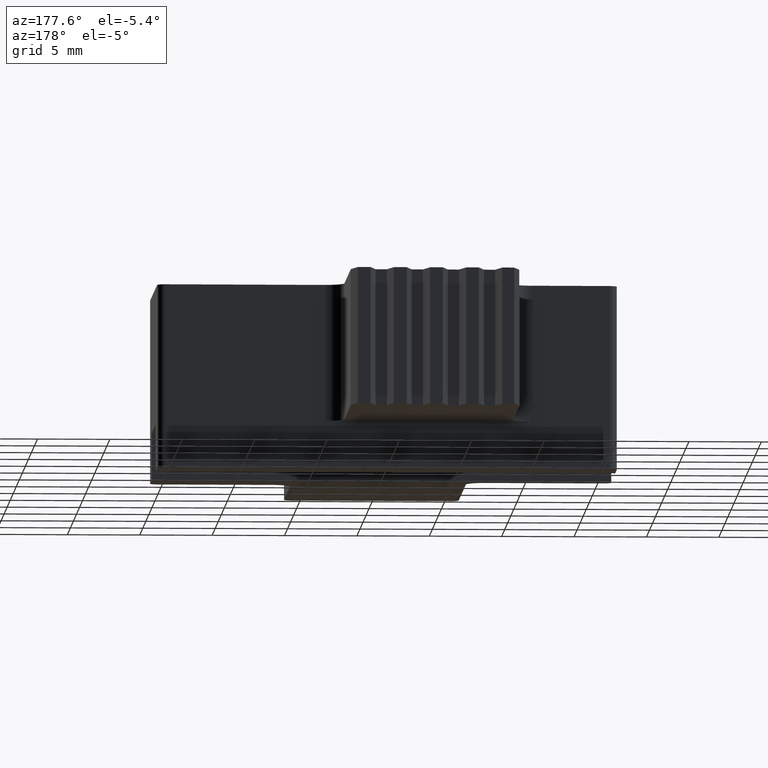
[diagram: clean part render]
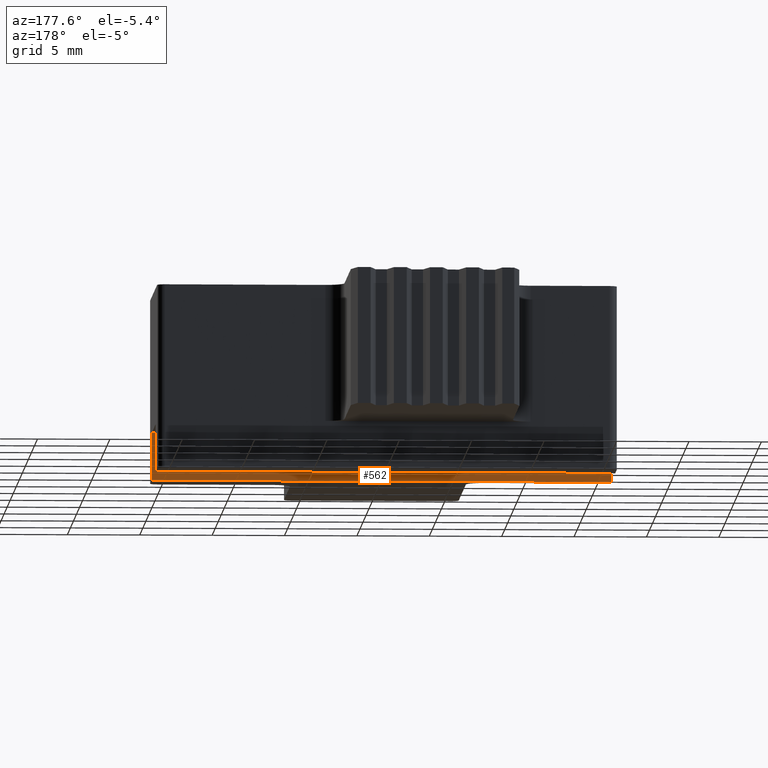
[diagram: same view with one face highlighted and labeled with its STEP entity id]
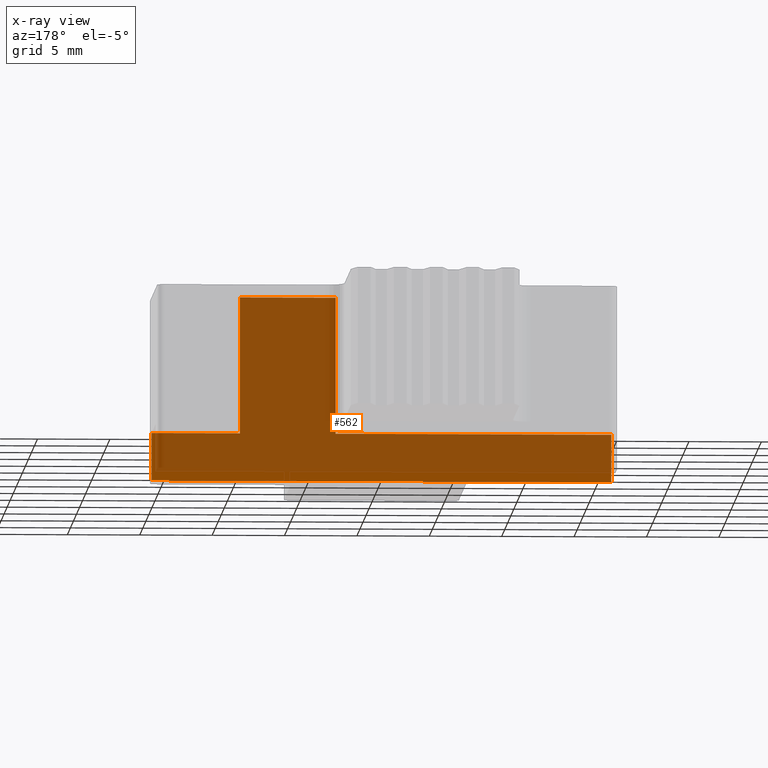
[diagram: x-ray of the same camera — body ghosted, the highlighted face saturated]
A machine part, auxiliary view. The second image highlights one B-rep face of the part: STEP entity #562.
The next image is the same camera in x-ray: the body ghosted, the highlighted face saturated — about 88% of this face is hidden behind the body in this view.
In plain terms, the highlighted planar face has unit normal (0, -1, 0).
Its self-contained STEP definition (entity closure, byte-faithful):
#9 = VERTEX_POINT ( 'NONE', #965 ) ;
#67 = CARTESIAN_POINT ( 'NONE',  ( 1.004736740000000017, -0.7069999999999999618, -0.05900000000000000383 ) ) ;
#86 = VECTOR ( 'NONE', #1045, 39.37007874015748143 ) ;
#107 = EDGE_CURVE ( 'NONE', #1450, #1535, #1674, .T. ) ;
#130 = VERTEX_POINT ( 'NONE', #996 ) ;
#172 = CARTESIAN_POINT ( 'NONE',  ( 0.5047367400000000170, -0.7069999999999998508, -0.1880000000000000282 ) ) ;
#209 = LINE ( 'NONE', #1331, #86 ) ;
#272 = CARTESIAN_POINT ( 'NONE',  ( 0.7647367400000000259, -0.7069999999999998508, -0.05900000000000000383 ) ) ;
#355 = DIRECTION ( 'NONE',  ( -0.000000000000000000, -0.000000000000000000, 1.000000000000000000 ) ) ;
#395 = ORIENTED_EDGE ( 'NONE', *, *, #1623, .F. ) ;
#429 = ORIENTED_EDGE ( 'NONE', *, *, #1020, .F. ) ;
#471 = DIRECTION ( 'NONE',  ( 1.000000000000000000, 0.000000000000000000, 0.000000000000000000 ) ) ;
#490 = LINE ( 'NONE', #1570, #494 ) ;
#494 = VECTOR ( 'NONE', #1436, 39.37007874015748143 ) ;
#552 = DIRECTION ( 'NONE',  ( 0.000000000000000000, -1.000000000000000000, 0.000000000000000000 ) ) ;
#562 = ADVANCED_FACE ( 'NONE', ( #699 ), #1022, .F. ) ;
#585 = VECTOR ( 'NONE', #471, 39.37007874015748143 ) ;
#635 = CARTESIAN_POINT ( 'NONE',  ( 0.7647367400000000259, -0.7069999999999998508, -0.1880000000000000282 ) ) ;
#677 = ORIENTED_EDGE ( 'NONE', *, *, #107, .F. ) ;
#699 = FACE_OUTER_BOUND ( 'NONE', #1559, .T. ) ;
#749 = LINE ( 'NONE', #172, #585 ) ;
#755 = ORIENTED_EDGE ( 'NONE', *, *, #787, .T. ) ;
#763 = DIRECTION ( 'NONE',  ( -0.000000000000000000, -0.000000000000000000, 1.000000000000000000 ) ) ;
#787 = EDGE_CURVE ( 'NONE', #1450, #130, #1769, .T. ) ;
#795 = VECTOR ( 'NONE', #1595, 39.37007874015748143 ) ;
#797 = DIRECTION ( 'NONE',  ( -0.000000000000000000, -0.000000000000000000, -1.000000000000000000 ) ) ;
#806 = VERTEX_POINT ( 'NONE', #272 ) ;
#810 = ORIENTED_EDGE ( 'NONE', *, *, #988, .F. ) ;
#882 = VERTEX_POINT ( 'NONE', #1153 ) ;
#961 = ORIENTED_EDGE ( 'NONE', *, *, #1636, .T. ) ;
#962 = EDGE_CURVE ( 'NONE', #1657, #1797, #749, .T. ) ;
#965 = CARTESIAN_POINT ( 'NONE',  ( 1.004736740000000017, -0.7069999999999999618, -0.05900000000000000383 ) ) ;
#988 = EDGE_CURVE ( 'NONE', #9, #806, #1721, .T. ) ;
#996 = CARTESIAN_POINT ( 'NONE',  ( 0.5047367400000000170, -0.7069999999999998508, 0.3119999999999999996 ) ) ;
#1020 = EDGE_CURVE ( 'NONE', #1535, #1657, #209, .T. ) ;
#1022 = PLANE ( 'NONE',  #1266 ) ;
#1045 = DIRECTION ( 'NONE',  ( -0.000000000000000000, -0.000000000000000000, -1.000000000000000000 ) ) ;
#1050 = EDGE_CURVE ( 'NONE', #130, #882, #490, .T. ) ;
#1057 = LINE ( 'NONE', #635, #1211 ) ;
#1076 = CARTESIAN_POINT ( 'NONE',  ( -0.2452632600000000940, -0.7069999999999999618, -0.1880000000000000282 ) ) ;
#1079 = CARTESIAN_POINT ( 'NONE',  ( 0.5047367400000000170, -0.7069999999999998508, -0.1880000000000000282 ) ) ;
#1096 = VECTOR ( 'NONE', #355, 39.37007874015748143 ) ;
#1103 = ORIENTED_EDGE ( 'NONE', *, *, #1050, .T. ) ;
#1153 = CARTESIAN_POINT ( 'NONE',  ( 0.7647367400000000259, -0.7069999999999998508, 0.3119999999999999996 ) ) ;
#1158 = CARTESIAN_POINT ( 'NONE',  ( -0.2452632600000000940, -0.7069999999999999618, -0.05900000000000000383 ) ) ;
#1189 = CARTESIAN_POINT ( 'NONE',  ( 1.004736740000000017, -0.7069999999999999618, -0.05900000000000000383 ) ) ;
#1211 = VECTOR ( 'NONE', #763, 39.37007874015748143 ) ;
#1266 = AXIS2_PLACEMENT_3D ( 'NONE', #1561, #552, #1275 ) ;
#1275 = DIRECTION ( 'NONE',  ( 0.000000000000000000, -0.000000000000000000, -1.000000000000000000 ) ) ;
#1331 = CARTESIAN_POINT ( 'NONE',  ( -0.2452632600000000940, -0.7069999999999999618, -0.05900000000000000383 ) ) ;
#1344 = LINE ( 'NONE', #67, #1732 ) ;
#1350 = VECTOR ( 'NONE', #1563, 39.37007874015748143 ) ;
#1436 = DIRECTION ( 'NONE',  ( 1.000000000000000000, 0.000000000000000000, 0.000000000000000000 ) ) ;
#1444 = CARTESIAN_POINT ( 'NONE',  ( 0.5047367400000000170, -0.7069999999999999618, -0.05900000000000000383 ) ) ;
#1450 = VERTEX_POINT ( 'NONE', #1444 ) ;
#1535 = VERTEX_POINT ( 'NONE', #1158 ) ;
#1559 = EDGE_LOOP ( 'NONE', ( #1647, #429, #677, #755, #1103, #395, #810, #961 ) ) ;
#1561 = CARTESIAN_POINT ( 'NONE',  ( 0.5047367400000000170, -0.7069999999999998508, -0.1880000000000000282 ) ) ;
#1563 = DIRECTION ( 'NONE',  ( -1.000000000000000000, 0.000000000000000000, 0.000000000000000000 ) ) ;
#1570 = CARTESIAN_POINT ( 'NONE',  ( 0.5047367400000000170, -0.7069999999999998508, 0.3119999999999999996 ) ) ;
#1571 = CARTESIAN_POINT ( 'NONE',  ( 1.004736740000000017, -0.7069999999999999618, -0.05900000000000000383 ) ) ;
#1595 = DIRECTION ( 'NONE',  ( -1.000000000000000000, 0.000000000000000000, 0.000000000000000000 ) ) ;
#1623 = EDGE_CURVE ( 'NONE', #806, #882, #1057, .T. ) ;
#1636 = EDGE_CURVE ( 'NONE', #9, #1797, #1344, .T. ) ;
#1647 = ORIENTED_EDGE ( 'NONE', *, *, #962, .F. ) ;
#1657 = VERTEX_POINT ( 'NONE', #1076 ) ;
#1674 = LINE ( 'NONE', #1571, #1350 ) ;
#1721 = LINE ( 'NONE', #1189, #795 ) ;
#1732 = VECTOR ( 'NONE', #797, 39.37007874015748143 ) ;
#1736 = CARTESIAN_POINT ( 'NONE',  ( 1.004736740000000017, -0.7069999999999999618, -0.1880000000000000282 ) ) ;
#1769 = LINE ( 'NONE', #1079, #1096 ) ;
#1797 = VERTEX_POINT ( 'NONE', #1736 ) ;